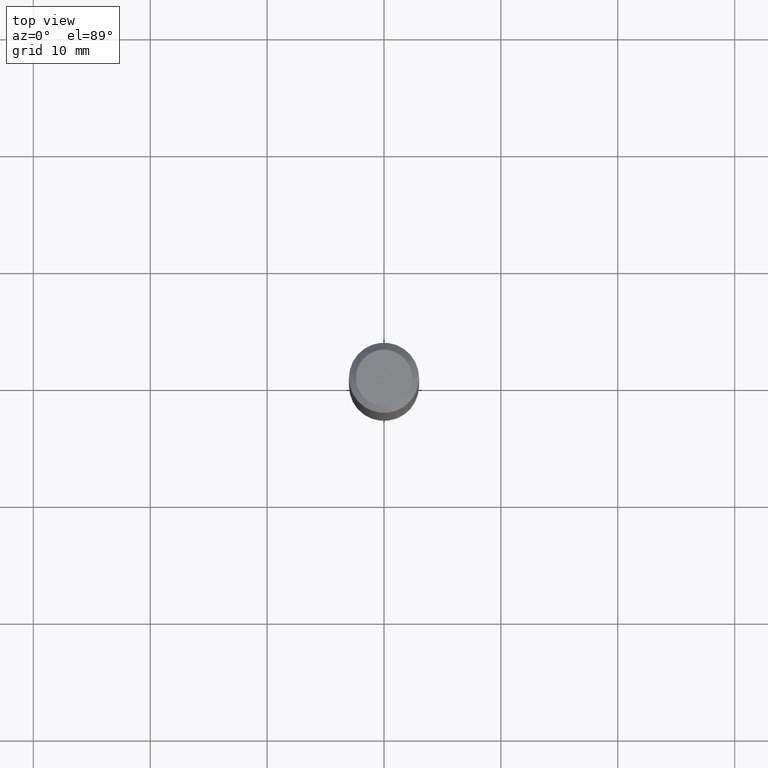
[diagram: clean part render]
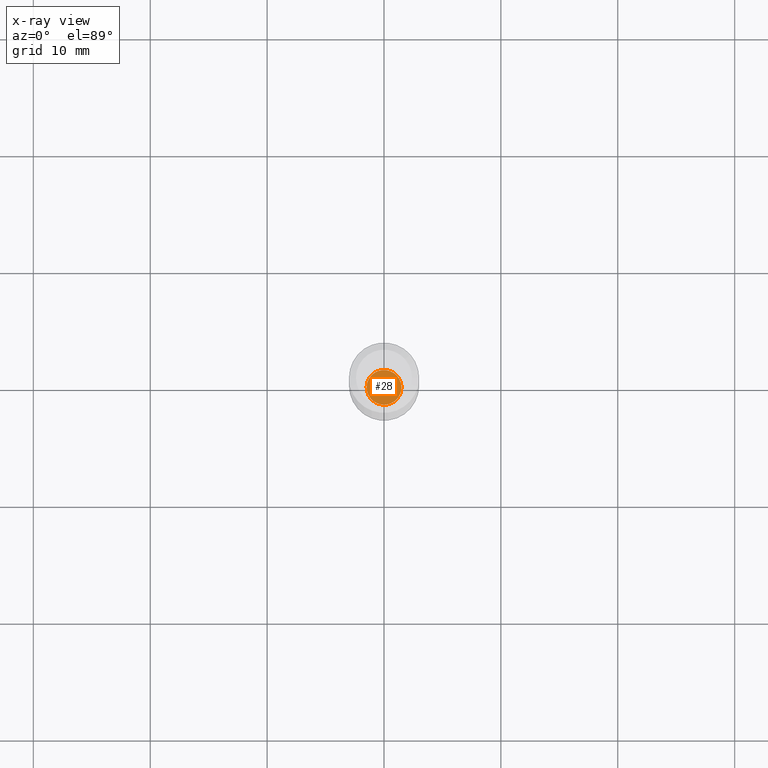
[diagram: x-ray — body ghosted, one internal face saturated and labeled with its STEP entity id]
A machine part, top view, then the same camera in x-ray: the body is ghosted and one INTERNAL B-rep face — a face not visible from any outside direction — is saturated and labeled: STEP entity #28.
In plain terms, the highlighted planar face has unit normal (-0, 0, 1).
Its self-contained STEP definition (entity closure, byte-faithful):
#28 = ADVANCED_FACE ( 'NONE', ( #149 ), #311, .F. ) ;
#62 = CARTESIAN_POINT ( 'NONE',  ( 4.621202403048053204E-29, -6.597852286011892490E-15, -1.889700000000000157 ) ) ;
#72 = CIRCLE ( 'NONE', #247, 0.05854999999999998400 ) ;
#75 = DIRECTION ( 'NONE',  ( -2.438088387897960049E-29, 3.491481338843145188E-15, 1.000000000000000000 ) ) ;
#86 = AXIS2_PLACEMENT_3D ( 'NONE', #153, #75, #221 ) ;
#99 = DIRECTION ( 'NONE',  ( 1.000000000000000000, -6.982962677686265922E-15, 0.000000000000000000 ) ) ;
#101 = DIRECTION ( 'NONE',  ( 1.000000000000000000, -6.982962677686265922E-15, 0.000000000000000000 ) ) ;
#106 = CARTESIAN_POINT ( 'NONE',  ( 4.621202403048053204E-29, -6.597852286011892490E-15, -1.889700000000000157 ) ) ;
#115 = CARTESIAN_POINT ( 'NONE',  ( 0.05854999999999998400, -7.006704750790423614E-15, -1.889700000000000157 ) ) ;
#121 = CARTESIAN_POINT ( 'NONE',  ( -0.05854999999999998400, -6.179180287050244272E-15, -1.889700000000000157 ) ) ;
#141 = DIRECTION ( 'NONE',  ( -2.445468806185136597E-29, 3.491481338843145583E-15, 1.000000000000000000 ) ) ;
#149 = FACE_OUTER_BOUND ( 'NONE', #478, .T. ) ;
#153 = CARTESIAN_POINT ( 'NONE',  ( 4.621202403048053204E-29, -6.597852286011892490E-15, -1.889700000000000157 ) ) ;
#209 = VERTEX_POINT ( 'NONE', #121 ) ;
#221 = DIRECTION ( 'NONE',  ( 1.000000000000000000, -6.982962677686265922E-15, 4.876176775795935793E-29 ) ) ;
#247 = AXIS2_PLACEMENT_3D ( 'NONE', #62, #368, #99 ) ;
#251 = ORIENTED_EDGE ( 'NONE', *, *, #352, .F. ) ;
#311 = PLANE ( 'NONE',  #86 ) ;
#318 = EDGE_CURVE ( 'NONE', #209, #452, #367, .T. ) ;
#352 = EDGE_CURVE ( 'NONE', #452, #209, #72, .T. ) ;
#366 = ORIENTED_EDGE ( 'NONE', *, *, #318, .F. ) ;
#367 = CIRCLE ( 'NONE', #488, 0.05854999999999998400 ) ;
#368 = DIRECTION ( 'NONE',  ( -2.445468806185136597E-29, 3.491481338843145583E-15, 1.000000000000000000 ) ) ;
#452 = VERTEX_POINT ( 'NONE', #115 ) ;
#478 = EDGE_LOOP ( 'NONE', ( #251, #366 ) ) ;
#488 = AXIS2_PLACEMENT_3D ( 'NONE', #106, #141, #101 ) ;